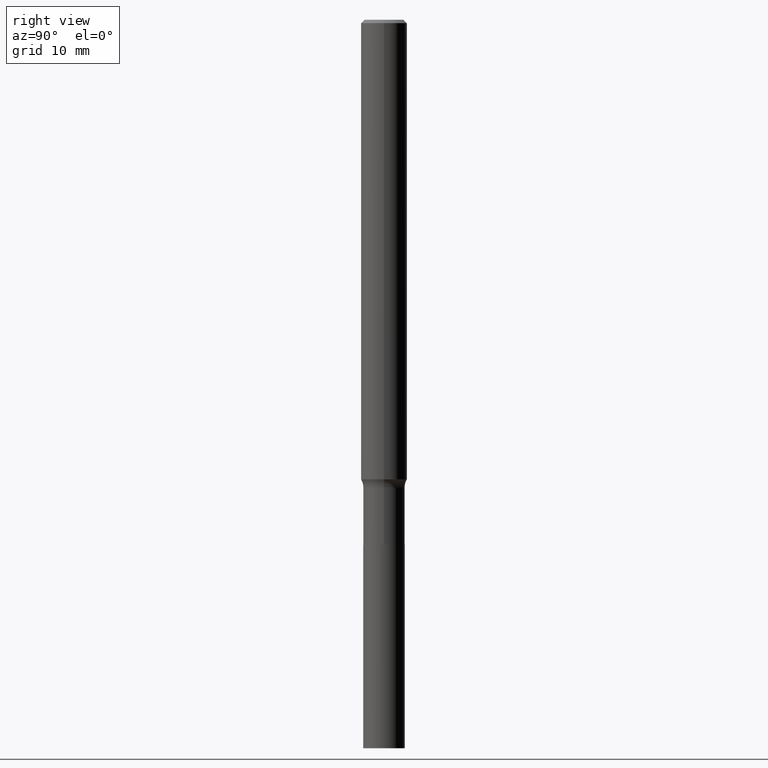
[diagram: clean part render]
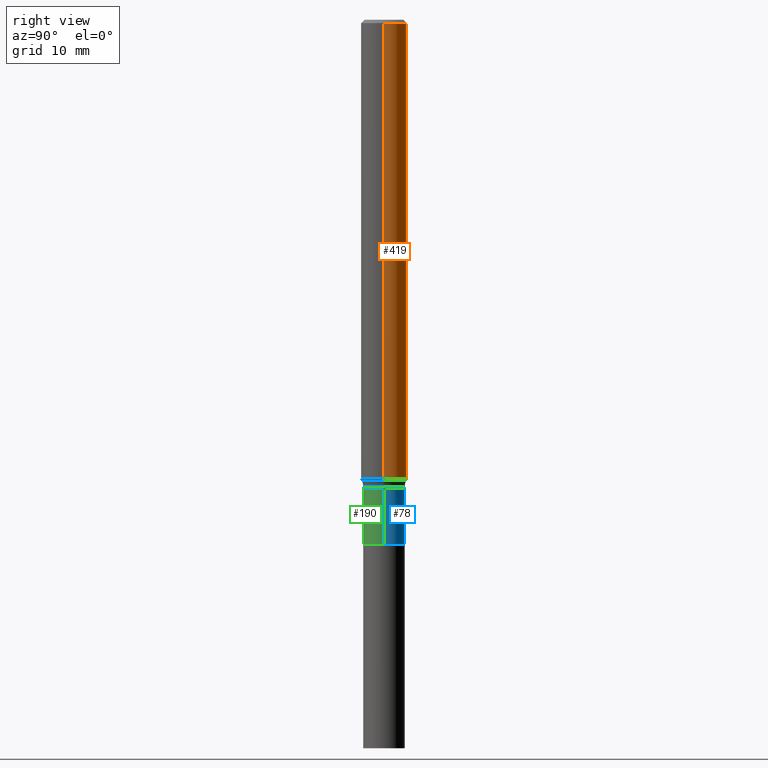
[diagram: same view with three faces highlighted in distinct colors, each labeled with its STEP entity id]
A machine part, right view with three faces highlighted in distinct colors.
Their STEP definitions:

[orange] entity #419 — the highlighted cylindrical surface (edge-blend (fillet) strip) has radius 2.9997 mm, axis along (-0, 0, 1).
#1 = VERTEX_POINT ( 'NONE', #330 ) ;
#5 = DIRECTION ( 'NONE',  ( -2.445468806185136877E-29, 3.491481338843145188E-15, 1.000000000000000000 ) ) ;
#32 = CARTESIAN_POINT ( 'NONE',  ( 0.000000000000000000, 0.000000000000000000, 0.000000000000000000 ) ) ;
#36 = ORIENTED_EDGE ( 'NONE', *, *, #52, .T. ) ;
#40 = DIRECTION ( 'NONE',  ( -2.445468806185136597E-29, 3.491481338843145583E-15, 1.000000000000000000 ) ) ;
#47 = EDGE_LOOP ( 'NONE', ( #186, #36, #177, #400 ) ) ;
#52 = EDGE_CURVE ( 'NONE', #283, #58, #192, .T. ) ;
#58 = VERTEX_POINT ( 'NONE', #374 ) ;
#59 = EDGE_CURVE ( 'NONE', #1, #58, #118, .T. ) ;
#118 = CIRCLE ( 'NONE', #130, 0.1180999999999999966 ) ;
#122 = CARTESIAN_POINT ( 'NONE',  ( -0.1181000000000002742, -7.399731621835335132E-15, -2.359709760183869687 ) ) ;
#130 = AXIS2_PLACEMENT_3D ( 'NONE', #341, #40, #406 ) ;
#137 = EDGE_CURVE ( 'NONE', #157, #1, #425, .T. ) ;
#150 = AXIS2_PLACEMENT_3D ( 'NONE', #32, #183, #432 ) ;
#157 = VERTEX_POINT ( 'NONE', #383 ) ;
#177 = ORIENTED_EDGE ( 'NONE', *, *, #59, .F. ) ;
#183 = DIRECTION ( 'NONE',  ( -2.445468806185136597E-29, 3.491481338843145583E-15, 1.000000000000000000 ) ) ;
#186 = ORIENTED_EDGE ( 'NONE', *, *, #261, .T. ) ;
#192 = LINE ( 'NONE', #335, #346 ) ;
#204 = CARTESIAN_POINT ( 'NONE',  ( 0.1181000000000001354, -8.246878922347490515E-16, 5.758764772215007447E-30 ) ) ;
#212 = AXIS2_PLACEMENT_3D ( 'NONE', #334, #266, #259 ) ;
#232 = VECTOR ( 'NONE', #349, 39.37007874015748143 ) ;
#259 = DIRECTION ( 'NONE',  ( 1.000000000000000000, -6.982962677686264344E-15, 0.000000000000000000 ) ) ;
#261 = EDGE_CURVE ( 'NONE', #157, #283, #355, .T. ) ;
#266 = DIRECTION ( 'NONE',  ( -2.445468806185136597E-29, 3.491481338843145583E-15, 1.000000000000000000 ) ) ;
#283 = VERTEX_POINT ( 'NONE', #122 ) ;
#314 = CYLINDRICAL_SURFACE ( 'NONE', #150, 0.1181000000000001354 ) ;
#330 = CARTESIAN_POINT ( 'NONE',  ( 0.1180999999999999966, -8.865394841523548556E-16, -0.01771500000000011607 ) ) ;
#334 = CARTESIAN_POINT ( 'NONE',  ( 5.770596610180262322E-29, -8.238882592768014117E-15, -2.359709760183869687 ) ) ;
#335 = CARTESIAN_POINT ( 'NONE',  ( -0.1181000000000001354, 8.391509709326792818E-16, -5.809262341591050090E-30 ) ) ;
#341 = CARTESIAN_POINT ( 'NONE',  ( 4.332147990156998495E-31, -6.185159191760672860E-17, -0.01771500000000011607 ) ) ;
#346 = VECTOR ( 'NONE', #5, 39.37007874015748143 ) ;
#349 = DIRECTION ( 'NONE',  ( -2.445468806185136877E-29, 3.491481338843145188E-15, 1.000000000000000000 ) ) ;
#355 = CIRCLE ( 'NONE', #212, 0.1181000000000002742 ) ;
#364 = FACE_OUTER_BOUND ( 'NONE', #47, .T. ) ;
#374 = CARTESIAN_POINT ( 'NONE',  ( -0.1180999999999999966, -3.311216121410129200E-15, -0.01771500000000011607 ) ) ;
#383 = CARTESIAN_POINT ( 'NONE',  ( 0.1181000000000002742, -9.063570485002762380E-15, -2.359709760183869687 ) ) ;
#400 = ORIENTED_EDGE ( 'NONE', *, *, #137, .F. ) ;
#406 = DIRECTION ( 'NONE',  ( 1.000000000000000000, -6.982962677686266711E-15, 0.000000000000000000 ) ) ;
#419 = ADVANCED_FACE ( 'NONE', ( #364 ), #314, .T. ) ;
#425 = LINE ( 'NONE', #204, #232 ) ;
#432 = DIRECTION ( 'NONE',  ( 1.000000000000000000, -6.982962677686266711E-15, 4.876176775795936353E-29 ) ) ;

[blue] entity #78 — the highlighted cylindrical surface (edge-blend (fillet) strip) has radius 2.7051 mm, axis along (-0, 0, 1).
#21 = EDGE_CURVE ( 'NONE', #452, #246, #451, .T. ) ;
#27 = ORIENTED_EDGE ( 'NONE', *, *, #21, .F. ) ;
#42 = AXIS2_PLACEMENT_3D ( 'NONE', #90, #300, #446 ) ;
#43 = DIRECTION ( 'NONE',  ( -2.445468806185136597E-29, 3.491481338843145583E-15, 1.000000000000000000 ) ) ;
#55 = EDGE_CURVE ( 'NONE', #234, #452, #123, .T. ) ;
#78 = ADVANCED_FACE ( 'NONE', ( #263 ), #160, .T. ) ;
#79 = AXIS2_PLACEMENT_3D ( 'NONE', #377, #43, #338 ) ;
#90 = CARTESIAN_POINT ( 'NONE',  ( 0.000000000000000000, 0.000000000000000000, 0.000000000000000000 ) ) ;
#94 = VECTOR ( 'NONE', #197, 39.37007874015748143 ) ;
#114 = EDGE_LOOP ( 'NONE', ( #244, #214, #27, #393 ) ) ;
#123 = LINE ( 'NONE', #378, #94 ) ;
#132 = EDGE_CURVE ( 'NONE', #293, #246, #456, .T. ) ;
#133 = CARTESIAN_POINT ( 'NONE',  ( -0.1064999999999999836, 7.567280135845065812E-16, -5.238665871121473893E-30 ) ) ;
#160 = CYLINDRICAL_SURFACE ( 'NONE', #42, 0.1064999999999999836 ) ;
#197 = DIRECTION ( 'NONE',  ( -2.445468806185136877E-29, 3.491481338843145188E-15, 1.000000000000000000 ) ) ;
#214 = ORIENTED_EDGE ( 'NONE', *, *, #132, .T. ) ;
#221 = CARTESIAN_POINT ( 'NONE',  ( 0.1064999999999999974, -1.015567177029305481E-14, -2.695699999999999985 ) ) ;
#224 = VECTOR ( 'NONE', #275, 39.37007874015748143 ) ;
#234 = VERTEX_POINT ( 'NONE', #221 ) ;
#236 = AXIS2_PLACEMENT_3D ( 'NONE', #333, #410, #382 ) ;
#244 = ORIENTED_EDGE ( 'NONE', *, *, #299, .T. ) ;
#246 = VERTEX_POINT ( 'NONE', #415 ) ;
#263 = FACE_OUTER_BOUND ( 'NONE', #114, .T. ) ;
#275 = DIRECTION ( 'NONE',  ( -2.445468806185136877E-29, 3.491481338843145188E-15, 1.000000000000000000 ) ) ;
#293 = VERTEX_POINT ( 'NONE', #373 ) ;
#299 = EDGE_CURVE ( 'NONE', #234, #293, #337, .T. ) ;
#300 = DIRECTION ( 'NONE',  ( -2.445468806185136597E-29, 3.491481338843145583E-15, 1.000000000000000000 ) ) ;
#333 = CARTESIAN_POINT ( 'NONE',  ( 5.872059697411750332E-29, -8.383744990830161638E-15, -2.401200000000000223 ) ) ;
#337 = CIRCLE ( 'NONE', #79, 0.1064999999999999974 ) ;
#338 = DIRECTION ( 'NONE',  ( 1.000000000000000000, -6.982962677686273810E-15, 0.000000000000000000 ) ) ;
#373 = CARTESIAN_POINT ( 'NONE',  ( -0.1064999999999999974, -8.141137604390308368E-15, -2.695699999999999985 ) ) ;
#377 = CARTESIAN_POINT ( 'NONE',  ( 6.592250260833271391E-29, -9.411986245119467472E-15, -2.695699999999999985 ) ) ;
#378 = CARTESIAN_POINT ( 'NONE',  ( 0.1064999999999999836, -7.436855251735872430E-16, 5.193128266222670330E-30 ) ) ;
#382 = DIRECTION ( 'NONE',  ( 1.000000000000000000, -6.982962677686267499E-15, 0.000000000000000000 ) ) ;
#393 = ORIENTED_EDGE ( 'NONE', *, *, #55, .F. ) ;
#410 = DIRECTION ( 'NONE',  ( -2.445468806185136597E-29, 3.491481338843145583E-15, 1.000000000000000000 ) ) ;
#415 = CARTESIAN_POINT ( 'NONE',  ( -0.1064999999999999558, -8.141137604390308368E-15, -2.401200000000000223 ) ) ;
#446 = DIRECTION ( 'NONE',  ( 1.000000000000000000, -6.982962677686265922E-15, 4.876176775795935232E-29 ) ) ;
#451 = CIRCLE ( 'NONE', #236, 0.1064999999999999558 ) ;
#452 = VERTEX_POINT ( 'NONE', #457 ) ;
#456 = LINE ( 'NONE', #133, #224 ) ;
#457 = CARTESIAN_POINT ( 'NONE',  ( 0.1064999999999999558, -9.127430516003748980E-15, -2.401200000000000223 ) ) ;

[green] entity #190 — the highlighted cylindrical surface (edge-blend (fillet) strip) has radius 2.7051 mm, axis along (-0, 0, 1).
#14 = ORIENTED_EDGE ( 'NONE', *, *, #277, .F. ) ;
#16 = AXIS2_PLACEMENT_3D ( 'NONE', #109, #253, #392 ) ;
#18 = CARTESIAN_POINT ( 'NONE',  ( 6.592250260833271391E-29, -9.411986245119467472E-15, -2.695699999999999985 ) ) ;
#19 = CIRCLE ( 'NONE', #409, 0.1064999999999999558 ) ;
#55 = EDGE_CURVE ( 'NONE', #234, #452, #123, .T. ) ;
#65 = ORIENTED_EDGE ( 'NONE', *, *, #128, .T. ) ;
#75 = DIRECTION ( 'NONE',  ( -2.445468806185136597E-29, 3.491481338843145583E-15, 1.000000000000000000 ) ) ;
#94 = VECTOR ( 'NONE', #197, 39.37007874015748143 ) ;
#109 = CARTESIAN_POINT ( 'NONE',  ( 0.000000000000000000, 0.000000000000000000, 0.000000000000000000 ) ) ;
#123 = LINE ( 'NONE', #378, #94 ) ;
#128 = EDGE_CURVE ( 'NONE', #293, #234, #199, .T. ) ;
#132 = EDGE_CURVE ( 'NONE', #293, #246, #456, .T. ) ;
#133 = CARTESIAN_POINT ( 'NONE',  ( -0.1064999999999999836, 7.567280135845065812E-16, -5.238665871121473893E-30 ) ) ;
#167 = AXIS2_PLACEMENT_3D ( 'NONE', #18, #310, #313 ) ;
#190 = ADVANCED_FACE ( 'NONE', ( #286 ), #436, .T. ) ;
#197 = DIRECTION ( 'NONE',  ( -2.445468806185136877E-29, 3.491481338843145188E-15, 1.000000000000000000 ) ) ;
#199 = CIRCLE ( 'NONE', #167, 0.1064999999999999974 ) ;
#221 = CARTESIAN_POINT ( 'NONE',  ( 0.1064999999999999974, -1.015567177029305481E-14, -2.695699999999999985 ) ) ;
#224 = VECTOR ( 'NONE', #275, 39.37007874015748143 ) ;
#234 = VERTEX_POINT ( 'NONE', #221 ) ;
#246 = VERTEX_POINT ( 'NONE', #415 ) ;
#253 = DIRECTION ( 'NONE',  ( -2.445468806185136597E-29, 3.491481338843145583E-15, 1.000000000000000000 ) ) ;
#275 = DIRECTION ( 'NONE',  ( -2.445468806185136877E-29, 3.491481338843145188E-15, 1.000000000000000000 ) ) ;
#277 = EDGE_CURVE ( 'NONE', #246, #452, #19, .T. ) ;
#286 = FACE_OUTER_BOUND ( 'NONE', #376, .T. ) ;
#293 = VERTEX_POINT ( 'NONE', #373 ) ;
#304 = DIRECTION ( 'NONE',  ( 1.000000000000000000, -6.982962677686267499E-15, 0.000000000000000000 ) ) ;
#305 = ORIENTED_EDGE ( 'NONE', *, *, #132, .F. ) ;
#310 = DIRECTION ( 'NONE',  ( -2.445468806185136597E-29, 3.491481338843145583E-15, 1.000000000000000000 ) ) ;
#313 = DIRECTION ( 'NONE',  ( 1.000000000000000000, -6.982962677686273810E-15, 0.000000000000000000 ) ) ;
#340 = CARTESIAN_POINT ( 'NONE',  ( 5.872059697411750332E-29, -8.383744990830161638E-15, -2.401200000000000223 ) ) ;
#373 = CARTESIAN_POINT ( 'NONE',  ( -0.1064999999999999974, -8.141137604390308368E-15, -2.695699999999999985 ) ) ;
#376 = EDGE_LOOP ( 'NONE', ( #305, #65, #416, #14 ) ) ;
#378 = CARTESIAN_POINT ( 'NONE',  ( 0.1064999999999999836, -7.436855251735872430E-16, 5.193128266222670330E-30 ) ) ;
#392 = DIRECTION ( 'NONE',  ( 1.000000000000000000, -6.982962677686265922E-15, 4.876176775795935232E-29 ) ) ;
#409 = AXIS2_PLACEMENT_3D ( 'NONE', #340, #75, #304 ) ;
#415 = CARTESIAN_POINT ( 'NONE',  ( -0.1064999999999999558, -8.141137604390308368E-15, -2.401200000000000223 ) ) ;
#416 = ORIENTED_EDGE ( 'NONE', *, *, #55, .T. ) ;
#436 = CYLINDRICAL_SURFACE ( 'NONE', #16, 0.1064999999999999836 ) ;
#452 = VERTEX_POINT ( 'NONE', #457 ) ;
#456 = LINE ( 'NONE', #133, #224 ) ;
#457 = CARTESIAN_POINT ( 'NONE',  ( 0.1064999999999999558, -9.127430516003748980E-15, -2.401200000000000223 ) ) ;